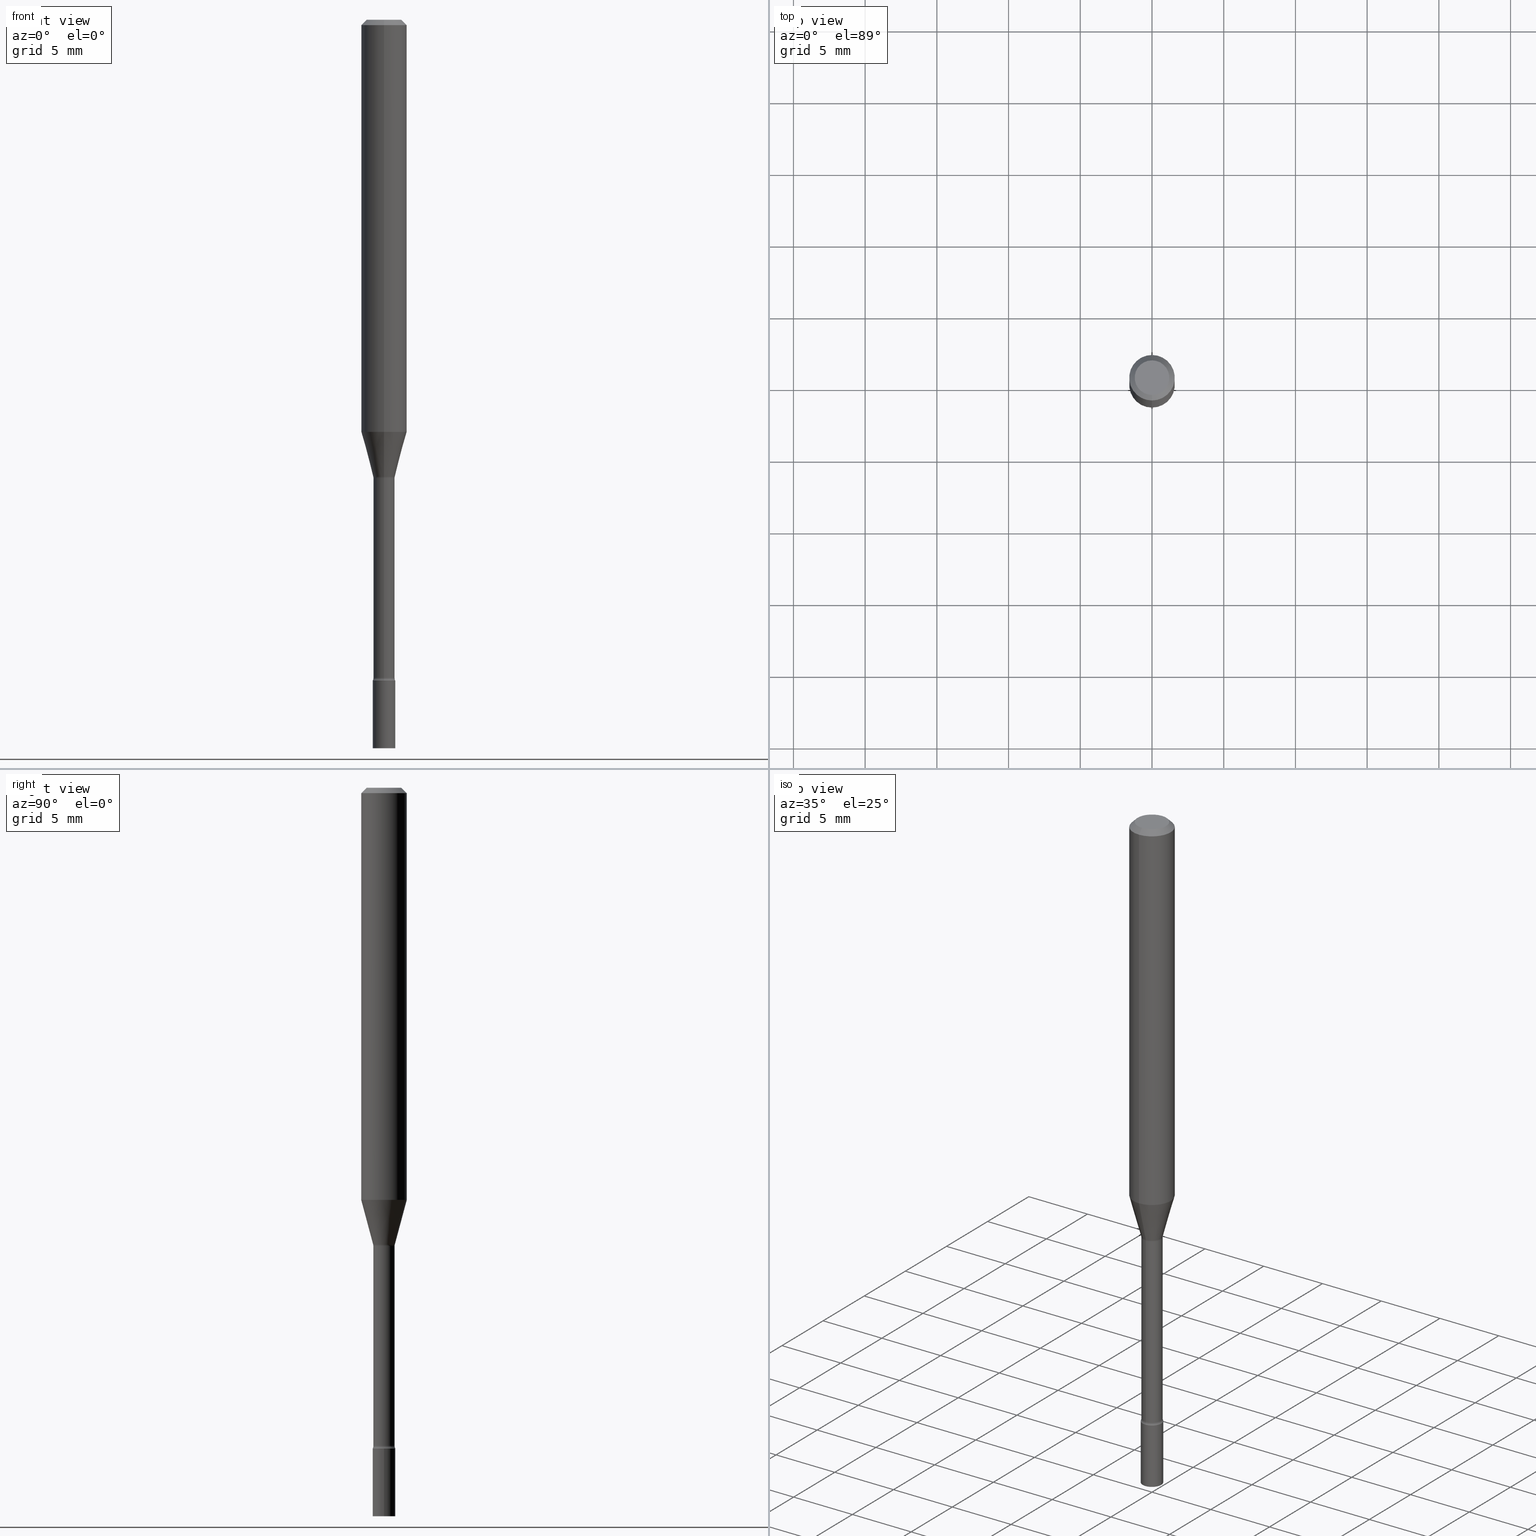
[diagram: canonical four-view strip — front | top / right | iso, engineering-drawing reading convention]
A machine part, canonical four-view strip (front | top / right | iso — engineering-drawing reading convention). The complete STEP part file that produces these views, byte-faithful:
ISO-10303-21;
HEADER;
FILE_DESCRIPTION (( 'STEP AP203' ),
    '1' );
FILE_NAME ('09378.STEP',
    '2024-03-08T23:30:36',
    ( '' ),
    ( '' ),
    'SwSTEP 2.0',
    'SolidWorks 2023',
    '' );
FILE_SCHEMA (( 'CONFIG_CONTROL_DESIGN' ));
ENDSEC;

DATA;
#1 = CARTESIAN_POINT ( 'NONE',  ( -0.03099999999999999978, -6.437986665088246838E-15, -1.813999999999999835 ) ) ;
#2 = CARTESIAN_POINT ( 'NONE',  ( 0.000000000000000000, 0.000000000000000000, 0.000000000000000000 ) ) ;
#3 = DIRECTION ( 'NONE',  ( 2.445468536737133447E-29, -3.491481724708021844E-15, -1.000000000000000000 ) ) ;
#4 = DIRECTION ( 'NONE',  ( -6.982962677686265133E-15, -1.000000000000000000, 0.000000000000000000 ) ) ;
#5 = DIRECTION ( 'NONE',  ( -2.445468536737133447E-29, 3.491481724708021844E-15, 1.000000000000000000 ) ) ;
#6 = AXIS2_PLACEMENT_3D ( 'NONE', #144, #466, #393 ) ;
#7 = AXIS2_PLACEMENT_3D ( 'NONE', #352, #3, #355 ) ;
#8 = FACE_OUTER_BOUND ( 'NONE', #251, .T. ) ;
#9 = CARTESIAN_POINT ( 'NONE',  ( 0.03099999999999999978, -7.199434520694564708E-15, -2.000000000000000000 ) ) ;
#10 = ADVANCED_FACE ( 'NONE', ( #152 ), #422, .F. ) ;
#11 = CYLINDRICAL_SURFACE ( 'NONE', #218, 0.02915000000000001618 ) ;
#12 = ORIENTED_EDGE ( 'NONE', *, *, #241, .F. ) ;
#13 = AXIS2_PLACEMENT_3D ( 'NONE', #275, #439, #82 ) ;
#14 = DIRECTION ( 'NONE',  ( 1.000000000000000000, -6.982962677686270655E-15, 0.000000000000000000 ) ) ;
#15 = VERTEX_POINT ( 'NONE', #430 ) ;
#16 = DIRECTION ( 'NONE',  ( 1.000000000000000000, -7.105427357601001070E-15, 4.926315513267563992E-29 ) ) ;
#17 = ORIENTED_EDGE ( 'NONE', *, *, #403, .T. ) ;
#18 = DIRECTION ( 'NONE',  ( -6.982962677686266711E-15, -1.000000000000000000, 0.000000000000000000 ) ) ;
#19 = CC_DESIGN_DATE_AND_TIME_ASSIGNMENT ( #115, #193, ( #196 ) ) ;
#20 = ORIENTED_EDGE ( 'NONE', *, *, #485, .T. ) ;
#21 = AXIS2_PLACEMENT_3D ( 'NONE', #396, #354, #155 ) ;
#22 = FACE_OUTER_BOUND ( 'NONE', #227, .T. ) ;
#23 = CONICAL_SURFACE ( 'NONE', #463, 0.02966111260566397720, 0.2617993877991501295 ) ;
#24 = PLANE ( 'NONE',  #243 ) ;
#25 = ORIENTED_EDGE ( 'NONE', *, *, #403, .F. ) ;
#26 = CALENDAR_DATE ( 2024, 8, 3 ) ;
#27 = DIRECTION ( 'NONE',  ( 2.438088387897960049E-29, -3.491481338843145188E-15, -1.000000000000000000 ) ) ;
#28 = ORIENTED_EDGE ( 'NONE', *, *, #46, .F. ) ;
#29 = DIRECTION ( 'NONE',  ( -2.445468536737133167E-29, 3.491481724708022239E-15, 1.000000000000000000 ) ) ;
#30 = CARTESIAN_POINT ( 'NONE',  ( 4.440892098500625669E-16, 0.06250000000000000000, -2.182176077942513406E-16 ) ) ;
#31 = PRODUCT_RELATED_PRODUCT_CATEGORY ( 'detail', '', ( #443 ) ) ;
#32 = AXIS2_PLACEMENT_3D ( 'NONE', #69, #370, #300 ) ;
#33 = VECTOR ( 'NONE', #169, 39.37007874015748143 ) ;
#34 = CARTESIAN_POINT ( 'NONE',  ( 3.066843755278733880E-29, -4.378641051083626177E-15, -1.254092501787273051 ) ) ;
#35 = ORIENTED_EDGE ( 'NONE', *, *, #85, .F. ) ;
#36 = APPLICATION_CONTEXT ( 'configuration controlled 3d designs of mechanical parts and assemblies' ) ;
#37 = EDGE_LOOP ( 'NONE', ( #55, #210 ) ) ;
#38 = CC_DESIGN_PERSON_AND_ORGANIZATION_ASSIGNMENT ( #316, #388, ( #196 ) ) ;
#39 = APPLICATION_PROTOCOL_DEFINITION ( 'international standard', 'config_control_design', 1994, #36 ) ;
#40 = CARTESIAN_POINT ( 'NONE',  ( 3.066843755278733880E-29, -4.378641051083626177E-15, -1.254092501787273051 ) ) ;
#41 = CARTESIAN_POINT ( 'NONE',  ( -2.035533620545107573E-16, -0.02915000000000635139, -1.806783525791634704 ) ) ;
#42 = AXIS2_PLACEMENT_3D ( 'NONE', #34, #469, #206 ) ;
#43 = AXIS2_PLACEMENT_3D ( 'NONE', #462, #285, #224 ) ;
#44 = ADVANCED_FACE ( 'NONE', ( #467 ), #180, .F. ) ;
#45 = DIRECTION ( 'NONE',  ( -2.445468536737133447E-29, 3.491481724708021844E-15, 1.000000000000000000 ) ) ;
#46 = EDGE_CURVE ( 'NONE', #464, #173, #346, .T. ) ;
#47 = DIRECTION ( 'NONE',  ( -6.982962677686266711E-15, -1.000000000000000000, 3.491481724708022633E-15 ) ) ;
#48 = AXIS2_PLACEMENT_3D ( 'NONE', #200, #434, #116 ) ;
#49 = VECTOR ( 'NONE', #112, 39.37007874015748143 ) ;
#50 = ORIENTED_EDGE ( 'NONE', *, *, #174, .F. ) ;
#51 = EDGE_CURVE ( 'NONE', #68, #71, #320, .T. ) ;
#52 = DIRECTION ( 'NONE',  ( -2.445468806185136597E-29, 3.491481338843145583E-15, 1.000000000000000000 ) ) ;
#53 = ORIENTED_EDGE ( 'NONE', *, *, #167, .F. ) ;
#54 = CLOSED_SHELL ( 'NONE', ( #431, #444, #286, #141 ) ) ;
#55 = ORIENTED_EDGE ( 'NONE', *, *, #485, .F. ) ;
#56 = CARTESIAN_POINT ( 'NONE',  ( 3.274220454076449378E-16, 0.02966111260565960223, -1.254092501787273051 ) ) ;
#57 = DIRECTION ( 'NONE',  ( 7.105427357601001859E-15, 1.000000000000000000, 0.000000000000000000 ) ) ;
#58 = EDGE_CURVE ( 'NONE', #291, #287, #79, .T. ) ;
#59 = EDGE_CURVE ( 'NONE', #296, #287, #126, .T. ) ;
#60 = ORIENTED_EDGE ( 'NONE', *, *, #199, .T. ) ;
#61 = DIRECTION ( 'NONE',  ( -2.445468536737133447E-29, 3.491481724708021844E-15, 1.000000000000000000 ) ) ;
#62 = PERSON_AND_ORGANIZATION_ROLE ( 'design_supplier' ) ;
#63 = VERTEX_POINT ( 'NONE', #1 ) ;
#64 = PLANE ( 'NONE',  #363 ) ;
#65 = CONICAL_SURFACE ( 'NONE', #7, 0.06250000000000000000, 0.7853981633974483900 ) ;
#66 = EDGE_CURVE ( 'NONE', #71, #181, #481, .T. ) ;
#67 = ORIENTED_EDGE ( 'NONE', *, *, #395, .F. ) ;
#68 = VERTEX_POINT ( 'NONE', #478 ) ;
#69 = CARTESIAN_POINT ( 'NONE',  ( 4.418432751852640684E-29, -6.308350963630715621E-15, -1.806783525791634704 ) ) ;
#70 = CARTESIAN_POINT ( 'NONE',  ( 4.418432751852640684E-29, -6.308350963630715621E-15, -1.806783525791634704 ) ) ;
#71 = VERTEX_POINT ( 'NONE', #239 ) ;
#72 = PERSON_AND_ORGANIZATION ( #399, #402 ) ;
#73 = EDGE_CURVE ( 'NONE', #330, #184, #337, .T. ) ;
#74 = APPLICATION_CONTEXT ( 'configuration controlled 3d designs of mechanical parts and assemblies' ) ;
#75 = DIRECTION ( 'NONE',  ( -6.982962677686265922E-15, -1.000000000000000000, 3.491481724708021844E-15 ) ) ;
#76 = CALENDAR_DATE ( 2024, 8, 3 ) ;
#77 = DIRECTION ( 'NONE',  ( -6.982962677686265922E-15, -1.000000000000000000, 0.000000000000000000 ) ) ;
#78 = SHAPE_DEFINITION_REPRESENTATION ( #86, #506 ) ;
#79 = CIRCLE ( 'NONE', #381, 0.01500000000000002720 ) ;
#80 = AXIS2_PLACEMENT_3D ( 'NONE', #498, #414, #252 ) ;
#81 = PERSON_AND_ORGANIZATION ( #399, #402 ) ;
#82 = DIRECTION ( 'NONE',  ( -6.982962677686266711E-15, -1.000000000000000000, 0.000000000000000000 ) ) ;
#83 = PERSON_AND_ORGANIZATION_ROLE ( 'design_owner' ) ;
#84 = DIRECTION ( 'NONE',  ( -2.445468806185136597E-29, 3.491481338843145583E-15, 1.000000000000000000 ) ) ;
#85 = EDGE_CURVE ( 'NONE', #15, #63, #272, .T. ) ;
#86 = PRODUCT_DEFINITION_SHAPE ( 'NONE', 'NONE',  #196 ) ;
#87 = LINE ( 'NONE', #447, #98 ) ;
#88 = DIRECTION ( 'NONE',  ( -1.807323732225328562E-15, -0.2588190451025179639, 0.9659258262890689783 ) ) ;
#89 = AXIS2_PLACEMENT_3D ( 'NONE', #187, #301, #225 ) ;
#90 = AXIS2_PLACEMENT_3D ( 'NONE', #215, #366, #18 ) ;
#91 = CC_DESIGN_PERSON_AND_ORGANIZATION_ASSIGNMENT ( #367, #62, ( #154 ) ) ;
#92 = ORIENTED_EDGE ( 'NONE', *, *, #85, .T. ) ;
#93 = DIRECTION ( 'NONE',  ( -6.982962677686265922E-15, -1.000000000000000000, 4.370956789862821150E-15 ) ) ;
#94 = DIRECTION ( 'NONE',  ( -2.445468536737133447E-29, 3.491481724708021844E-15, 1.000000000000000000 ) ) ;
#95 = CYLINDRICAL_SURFACE ( 'NONE', #80, 0.03099999999999999978 ) ;
#96 = ORIENTED_EDGE ( 'NONE', *, *, #314, .F. ) ;
#97 = CLOSED_SHELL ( 'NONE', ( #513, #117, #44, #250, #232, #412, #157, #217, #281, #451, #10, #178, #263, #132 ) ) ;
#98 = VECTOR ( 'NONE', #321, 39.37007874015747433 ) ;
#99 = EDGE_CURVE ( 'NONE', #173, #464, #189, .T. ) ;
#100 = ORIENTED_EDGE ( 'NONE', *, *, #58, .T. ) ;
#101 = CYLINDRICAL_SURFACE ( 'NONE', #170, 0.06250000000000000000 ) ;
#102 = ORIENTED_EDGE ( 'NONE', *, *, #378, .T. ) ;
#103 = CARTESIAN_POINT ( 'NONE',  ( 3.840629472727447874E-16, 0.04749999999999999362, -1.947592745229184119E-16 ) ) ;
#104 = PERSON_AND_ORGANIZATION ( #399, #402 ) ;
#105 = ORIENTED_EDGE ( 'NONE', *, *, #314, .T. ) ;
#106 = DIRECTION ( 'NONE',  ( -2.445468536737133447E-29, 3.491481724708021844E-15, 1.000000000000000000 ) ) ;
#107 = AXIS2_PLACEMENT_3D ( 'NONE', #472, #29, #338 ) ;
#108 = SECURITY_CLASSIFICATION ( '', '', #460 ) ;
#109 = APPROVAL ( #344, 'UNSPECIFIED' ) ;
#110 = ORIENTED_EDGE ( 'NONE', *, *, #59, .F. ) ;
#111 = EDGE_CURVE ( 'NONE', #298, #63, #118, .T. ) ;
#112 = DIRECTION ( 'NONE',  ( -4.851104656540964275E-15, -0.7071067811865500152, -0.7071067811865450192 ) ) ;
#113 = LOCAL_TIME ( 18, 30, 36.00000000000000000, #433 ) ;
#114 = DIMENSIONAL_EXPONENTS ( 1.000000000000000000, 0.000000000000000000, 0.000000000000000000, 0.000000000000000000, 0.000000000000000000, 0.000000000000000000, 0.000000000000000000 ) ;
#115 = DATE_AND_TIME ( #76, #119 ) ;
#116 = DIRECTION ( 'NONE',  ( -6.982962677686266711E-15, -1.000000000000000000, 3.491481724708022633E-15 ) ) ;
#117 = ADVANCED_FACE ( 'NONE', ( #234 ), #237, .T. ) ;
#118 = CIRCLE ( 'NONE', #163, 0.03099999999999999978 ) ;
#119 = LOCAL_TIME ( 18, 30, 36.00000000000000000, #121 ) ;
#120 = DIRECTION ( 'NONE',  ( 7.105427357601001859E-15, 1.000000000000000000, 0.000000000000000000 ) ) ;
#121 = COORDINATED_UNIVERSAL_TIME_OFFSET ( 5, 0, .BEHIND. ) ;
#122 = DIRECTION ( 'NONE',  ( -6.982962677686265922E-15, -1.000000000000000000, 3.491481724708021844E-15 ) ) ;
#123 = DIRECTION ( 'NONE',  ( -1.000000000000000000, 6.982962677686265922E-15, -4.883557194083112340E-29 ) ) ;
#124 = DIRECTION ( 'NONE',  ( -2.445468536737133447E-29, 3.491481724708021844E-15, 1.000000000000000000 ) ) ;
#125 = DIRECTION ( 'NONE',  ( 1.000000000000000000, -6.982962677686270655E-15, 0.000000000000000000 ) ) ;
#126 = CIRCLE ( 'NONE', #13, 0.02914999999999998842 ) ;
#127 = CARTESIAN_POINT ( 'NONE',  ( -2.035533620545238229E-16, -0.02915000000000438074, -1.257974787463810973 ) ) ;
#128 = ORIENTED_EDGE ( 'NONE', *, *, #492, .T. ) ;
#129 = CARTESIAN_POINT ( 'NONE',  ( 4.440892098500904235E-16, 0.06249999999999995143, -0.01500000000000024751 ) ) ;
#130 = DIRECTION ( 'NONE',  ( -6.982962677686265133E-15, -1.000000000000000000, 0.000000000000000000 ) ) ;
#131 = DIRECTION ( 'NONE',  ( -2.445468536737133447E-29, 3.491481724708021844E-15, 1.000000000000000000 ) ) ;
#132 = ADVANCED_FACE ( 'NONE', ( #255 ), #406, .F. ) ;
#133 = ORIENTED_EDGE ( 'NONE', *, *, #477, .T. ) ;
#134 = FACE_OUTER_BOUND ( 'NONE', #385, .T. ) ;
#135 = ORIENTED_EDGE ( 'NONE', *, *, #425, .F. ) ;
#136 = AXIS2_PLACEMENT_3D ( 'NONE', #40, #138, #130 ) ;
#137 = DIRECTION ( 'NONE',  ( 2.445468536737133167E-29, -3.491481724708022239E-15, -1.000000000000000000 ) ) ;
#138 = DIRECTION ( 'NONE',  ( -2.445468536737133447E-29, 3.491481724708021844E-15, 1.000000000000000000 ) ) ;
#139 = DIRECTION ( 'NONE',  ( -6.982962677686265922E-15, -1.000000000000000000, 3.491481724708021844E-15 ) ) ;
#140 = CARTESIAN_POINT ( 'NONE',  ( 3.316907271900976096E-16, 0.04749999999999999362, -1.803023282232747297E-16 ) ) ;
#141 = ADVANCED_FACE ( 'NONE', ( #222 ), #24, .T. ) ;
#142 = ORIENTED_EDGE ( 'NONE', *, *, #325, .T. ) ;
#143 = CARTESIAN_POINT ( 'NONE',  ( 3.066843755278733880E-29, -4.378641051083626177E-15, -1.254092501787273051 ) ) ;
#144 = CARTESIAN_POINT ( 'NONE',  ( -3.082978022198179073E-16, -0.04415000000000438712, -1.257974787463810751 ) ) ;
#145 = ORIENTED_EDGE ( 'NONE', *, *, #66, .F. ) ;
#146 = CIRCLE ( 'NONE', #389, 0.02966111260566397720 ) ;
#147 = CIRCLE ( 'NONE', #417, 0.01500000000000001853 ) ;
#148 = ORIENTED_EDGE ( 'NONE', *, *, #211, .F. ) ;
#149 = CARTESIAN_POINT ( 'NONE',  ( -2.164718430082299331E-16, -0.03100000000000634887, -1.813999999999999835 ) ) ;
#150 = LINE ( 'NONE', #295, #357 ) ;
#151 = EDGE_LOOP ( 'NONE', ( #376, #12, #365, #457 ) ) ;
#152 = FACE_OUTER_BOUND ( 'NONE', #37, .T. ) ;
#153 = COORDINATED_UNIVERSAL_TIME_OFFSET ( 5, 0, .BEHIND. ) ;
#154 = PRODUCT_DEFINITION_FORMATION_WITH_SPECIFIED_SOURCE ( 'ANY', '', #443, .NOT_KNOWN. ) ;
#155 = DIRECTION ( 'NONE',  ( -6.982962677686265922E-15, -1.000000000000000000, 0.000000000000000000 ) ) ;
#156 = APPROVAL_STATUS ( 'not_yet_approved' ) ;
#157 = ADVANCED_FACE ( 'NONE', ( #261 ), #247, .T. ) ;
#158 = DIRECTION ( 'NONE',  ( -2.445468536737133447E-29, 3.491481724708021844E-15, 1.000000000000000000 ) ) ;
#159 = APPROVAL_DATE_TIME ( #195, #269 ) ;
#160 = DIRECTION ( 'NONE',  ( 6.982962677686265922E-15, 1.000000000000000000, -3.483106191921935554E-15 ) ) ;
#161 = APPROVAL_ROLE ( '' ) ;
#162 = CARTESIAN_POINT ( 'NONE',  ( 4.364351673553919652E-16, 0.06249999999999995143, -0.01500000000000024751 ) ) ;
#163 = AXIS2_PLACEMENT_3D ( 'NONE', #165, #319, #484 ) ;
#164 = AXIS2_PLACEMENT_3D ( 'NONE', #401, #131, #93 ) ;
#165 = CARTESIAN_POINT ( 'NONE',  ( 4.436080414419837365E-29, -6.333547148661465016E-15, -1.813999999999999835 ) ) ;
#166 = CYLINDRICAL_SURFACE ( 'NONE', #290, 0.03099999999999999978 ) ;
#167 = EDGE_CURVE ( 'NONE', #507, #296, #150, .T. ) ;
#168 = DIRECTION ( 'NONE',  ( 1.000000000000000000, -6.982962677686270655E-15, 0.000000000000000000 ) ) ;
#169 = DIRECTION ( 'NONE',  ( 4.937700262164548042E-15, 0.7071067811865451302, -0.7071067811865499042 ) ) ;
#170 = AXIS2_PLACEMENT_3D ( 'NONE', #253, #61, #216 ) ;
#171 = CC_DESIGN_SECURITY_CLASSIFICATION ( #108, ( #154 ) ) ;
#172 = FACE_OUTER_BOUND ( 'NONE', #461, .T. ) ;
#173 = VERTEX_POINT ( 'NONE', #103 ) ;
#174 = EDGE_CURVE ( 'NONE', #291, #68, #146, .T. ) ;
#175 = ORIENTED_EDGE ( 'NONE', *, *, #245, .F. ) ;
#176 = DIRECTION ( 'NONE',  ( -2.445468536737133447E-29, 3.491481724708021844E-15, 1.000000000000000000 ) ) ;
#177 = FACE_OUTER_BOUND ( 'NONE', #297, .T. ) ;
#178 = ADVANCED_FACE ( 'NONE', ( #177 ), #436, .F. ) ;
#179 = ORIENTED_EDGE ( 'NONE', *, *, #426, .F. ) ;
#180 = TOROIDAL_SURFACE ( 'NONE', #317, 0.04415000000000005725, 0.01500000000000001853 ) ;
#181 = VERTEX_POINT ( 'NONE', #336 ) ;
#182 = FACE_OUTER_BOUND ( 'NONE', #459, .T. ) ;
#183 = CC_DESIGN_PERSON_AND_ORGANIZATION_ASSIGNMENT ( #81, #348, ( #154 ) ) ;
#184 = VERTEX_POINT ( 'NONE', #149 ) ;
#185 = DIRECTION ( 'NONE',  ( 0.000000000000000000, 0.000000000000000000, 1.000000000000000000 ) ) ;
#186 = DIRECTION ( 'NONE',  ( 6.982962677686265922E-15, 1.000000000000000000, -3.491481724708022239E-15 ) ) ;
#187 = CARTESIAN_POINT ( 'NONE',  ( 3.076338101710126374E-29, -4.392195495165068238E-15, -1.257974787463810973 ) ) ;
#188 = VERTEX_POINT ( 'NONE', #327 ) ;
#189 = CIRCLE ( 'NONE', #48, 0.04749999999999999362 ) ;
#190 = AXIS2_PLACEMENT_3D ( 'NONE', #488, #495, #486 ) ;
#191 = ORIENTED_EDGE ( 'NONE', *, *, #174, .T. ) ;
#192 = ORIENTED_EDGE ( 'NONE', *, *, #492, .F. ) ;
#193 = DATE_TIME_ROLE ( 'creation_date' ) ;
#194 = AXIS2_PLACEMENT_3D ( 'NONE', #303, #514, #468 ) ;
#195 = DATE_AND_TIME ( #435, #208 ) ;
#196 = PRODUCT_DEFINITION ( 'UNKNOWN', '', #154, #416 ) ;
#197 =( LENGTH_UNIT ( ) NAMED_UNIT ( * ) SI_UNIT ( $, .METRE. ) );
#198 = CARTESIAN_POINT ( 'NONE',  ( -2.071224423039705106E-16, -0.02966111260566835564, -1.254092501787273051 ) ) ;
#199 = EDGE_CURVE ( 'NONE', #181, #322, #510, .T. ) ;
#200 = CARTESIAN_POINT ( 'NONE',  ( 7.070801462615394512E-46, -1.009523276005824331E-31, -2.891389259928738292E-17 ) ) ;
#201 = AXIS2_PLACEMENT_3D ( 'NONE', #361, #392, #160 ) ;
#202 =( GEOMETRIC_REPRESENTATION_CONTEXT ( 3 ) GLOBAL_UNCERTAINTY_ASSIGNED_CONTEXT ( ( #213 ) ) GLOBAL_UNIT_ASSIGNED_CONTEXT ( ( #349, #268, #384 ) ) REPRESENTATION_CONTEXT ( 'NONE', 'WORKASPACE' ) );
#203 = CARTESIAN_POINT ( 'NONE',  ( 0.000000000000000000, 0.000000000000000000, 0.000000000000000000 ) ) ;
#204 = DIRECTION ( 'NONE',  ( -2.445468536737133447E-29, 3.491481724708022239E-15, 1.000000000000000000 ) ) ;
#205 = DIRECTION ( 'NONE',  ( -2.445468806185136597E-29, 3.491481338843145583E-15, 1.000000000000000000 ) ) ;
#206 = DIRECTION ( 'NONE',  ( -6.982962677686265133E-15, -1.000000000000000000, 0.000000000000000000 ) ) ;
#207 = AXIS2_PLACEMENT_3D ( 'NONE', #2, #5, #310 ) ;
#208 = LOCAL_TIME ( 18, 30, 36.00000000000000000, #270 ) ;
#209 = CARTESIAN_POINT ( 'NONE',  ( 0.03099999999999999978, -6.550018991669739348E-15, -1.813999999999999835 ) ) ;
#210 = ORIENTED_EDGE ( 'NONE', *, *, #73, .F. ) ;
#211 = EDGE_CURVE ( 'NONE', #71, #188, #423, .T. ) ;
#212 = PLANE ( 'NONE',  #43 ) ;
#213 = UNCERTAINTY_MEASURE_WITH_UNIT (LENGTH_MEASURE( 1.000000000000000082E-05 ), #349, 'distance_accuracy_value', 'NONE');
#214 = EDGE_LOOP ( 'NONE', ( #305, #17, #302, #262 ) ) ;
#215 = CARTESIAN_POINT ( 'NONE',  ( 4.418432265018427708E-29, -6.308351660805017310E-15, -1.806783525791634704 ) ) ;
#216 = DIRECTION ( 'NONE',  ( -6.982962677686265922E-15, -1.000000000000000000, 3.491481724708021450E-15 ) ) ;
#217 = ADVANCED_FACE ( 'NONE', ( #340 ), #101, .T. ) ;
#218 = AXIS2_PLACEMENT_3D ( 'NONE', #397, #284, #122 ) ;
#219 = CC_DESIGN_APPROVAL ( #109, ( #108 ) ) ;
#220 = APPROVAL_PERSON_ORGANIZATION ( #345, #269, #311 ) ;
#221 = COORDINATED_UNIVERSAL_TIME_OFFSET ( 5, 0, .BEHIND. ) ;
#222 = FACE_OUTER_BOUND ( 'NONE', #410, .T. ) ;
#223 = ORIENTED_EDGE ( 'NONE', *, *, #325, .F. ) ;
#224 = DIRECTION ( 'NONE',  ( 1.000000000000000000, -6.982962677686265922E-15, 4.876176775795935793E-29 ) ) ;
#225 = DIRECTION ( 'NONE',  ( -6.982962677686265922E-15, -1.000000000000000000, 3.491481724708021844E-15 ) ) ;
#226 = ORIENTED_EDGE ( 'NONE', *, *, #259, .T. ) ;
#227 = EDGE_LOOP ( 'NONE', ( #254, #60, #343, #148 ) ) ;
#228 = APPLICATION_PROTOCOL_DEFINITION ( 'international standard', 'config_control_design', 1994, #74 ) ;
#229 = AXIS2_PLACEMENT_3D ( 'NONE', #504, #106, #258 ) ;
#230 = APPROVAL_DATE_TIME ( #350, #109 ) ;
#231 = ORIENTED_EDGE ( 'NONE', *, *, #73, .T. ) ;
#232 = ADVANCED_FACE ( 'NONE', ( #22 ), #429, .T. ) ;
#233 = ORIENTED_EDGE ( 'NONE', *, *, #111, .T. ) ;
#234 = FACE_OUTER_BOUND ( 'NONE', #282, .T. ) ;
#235 = VECTOR ( 'NONE', #458, 39.37007874015748143 ) ;
#236 = CIRCLE ( 'NONE', #229, 0.06250000000000000000 ) ;
#237 = CYLINDRICAL_SURFACE ( 'NONE', #323, 0.02915000000000001618 ) ;
#238 = CARTESIAN_POINT ( 'NONE',  ( 3.668202805105707334E-31, -5.237222587062043490E-17, -0.01500000000000003067 ) ) ;
#239 = CARTESIAN_POINT ( 'NONE',  ( -4.364351673553641579E-16, -0.06250000000000398293, -1.131536105567577888 ) ) ;
#240 = APPROVAL_STATUS ( 'not_yet_approved' ) ;
#241 = EDGE_CURVE ( 'NONE', #68, #291, #307, .T. ) ;
#242 = LINE ( 'NONE', #162, #33 ) ;
#243 = AXIS2_PLACEMENT_3D ( 'NONE', #375, #27, #379 ) ;
#244 = FACE_OUTER_BOUND ( 'NONE', #408, .T. ) ;
#245 = EDGE_CURVE ( 'NONE', #68, #296, #427, .T. ) ;
#246 = ORIENTED_EDGE ( 'NONE', *, *, #425, .T. ) ;
#247 = CONICAL_SURFACE ( 'NONE', #42, 0.02966111260566397720, 0.2617993877991501295 ) ;
#248 = ORIENTED_EDGE ( 'NONE', *, *, #426, .T. ) ;
#249 = FACE_OUTER_BOUND ( 'NONE', #304, .T. ) ;
#250 = ADVANCED_FACE ( 'NONE', ( #386 ), #273, .T. ) ;
#251 = EDGE_LOOP ( 'NONE', ( #35, #226, #248, #267 ) ) ;
#252 = DIRECTION ( 'NONE',  ( 1.000000000000000000, -6.982962677686266711E-15, 4.876176775795935232E-29 ) ) ;
#253 = CARTESIAN_POINT ( 'NONE',  ( 0.000000000000000000, 0.000000000000000000, 0.000000000000000000 ) ) ;
#254 = ORIENTED_EDGE ( 'NONE', *, *, #66, .T. ) ;
#255 = FACE_OUTER_BOUND ( 'NONE', #151, .T. ) ;
#256 = ORIENTED_EDGE ( 'NONE', *, *, #51, .F. ) ;
#257 = AXIS2_PLACEMENT_3D ( 'NONE', #445, #84, #125 ) ;
#258 = DIRECTION ( 'NONE',  ( -6.982962677686265922E-15, -1.000000000000000000, 3.483106191921935554E-15 ) ) ;
#259 = EDGE_CURVE ( 'NONE', #15, #332, #500, .T. ) ;
#260 = ORIENTED_EDGE ( 'NONE', *, *, #306, .F. ) ;
#261 = FACE_OUTER_BOUND ( 'NONE', #283, .T. ) ;
#262 = ORIENTED_EDGE ( 'NONE', *, *, #409, .F. ) ;
#263 = ADVANCED_FACE ( 'NONE', ( #244 ), #11, .T. ) ;
#264 = ORIENTED_EDGE ( 'NONE', *, *, #364, .T. ) ;
#265 = VECTOR ( 'NONE', #465, 39.37007874015748143 ) ;
#266 = LOCAL_TIME ( 18, 30, 36.00000000000000000, #221 ) ;
#267 = ORIENTED_EDGE ( 'NONE', *, *, #368, .F. ) ;
#268 =( NAMED_UNIT ( * ) PLANE_ANGLE_UNIT ( ) SI_UNIT ( $, .RADIAN. ) );
#269 = APPROVAL ( #156, 'UNSPECIFIED' ) ;
#270 = COORDINATED_UNIVERSAL_TIME_OFFSET ( 5, 0, .BEHIND. ) ;
#271 = PERSON_AND_ORGANIZATION ( #399, #402 ) ;
#272 = LINE ( 'NONE', #279, #289 ) ;
#273 = CONICAL_SURFACE ( 'NONE', #201, 0.06250000000000000000, 0.7853981633974483900 ) ;
#274 = APPROVAL_PERSON_ORGANIZATION ( #351, #309, #161 ) ;
#275 = CARTESIAN_POINT ( 'NONE',  ( 3.076337762751332275E-29, -4.392195980573354156E-15, -1.257974787463810973 ) ) ;
#276 = APPROVAL_DATE_TIME ( #475, #309 ) ;
#277 = CARTESIAN_POINT ( 'NONE',  ( 2.136957277798946103E-16, 0.02914999999999373301, -1.806783525791634704 ) ) ;
#278 = DIRECTION ( 'NONE',  ( 1.000000000000000000, -6.982962677686266711E-15, 4.876176775795935232E-29 ) ) ;
#279 = CARTESIAN_POINT ( 'NONE',  ( -0.03099999999999999978, 2.202682480856310560E-16, -1.524869877979020612E-30 ) ) ;
#280 = DIRECTION ( 'NONE',  ( -2.445468536737133447E-29, 3.491481724708021844E-15, 1.000000000000000000 ) ) ;
#281 = ADVANCED_FACE ( 'NONE', ( #441 ), #65, .T. ) ;
#282 = EDGE_LOOP ( 'NONE', ( #413, #452, #110, #53 ) ) ;
#283 = EDGE_LOOP ( 'NONE', ( #334, #191, #511, #25 ) ) ;
#284 = DIRECTION ( 'NONE',  ( -2.445468536737133447E-29, 3.491481724708021844E-15, 1.000000000000000000 ) ) ;
#285 = DIRECTION ( 'NONE',  ( -2.438088387897960049E-29, 3.491481338843145188E-15, 1.000000000000000000 ) ) ;
#286 = ADVANCED_FACE ( 'NONE', ( #8 ), #166, .T. ) ;
#287 = VERTEX_POINT ( 'NONE', #496 ) ;
#288 = DIRECTION ( 'NONE',  ( -2.445468806185136877E-29, 3.491481338843145188E-15, 1.000000000000000000 ) ) ;
#289 = VECTOR ( 'NONE', #446, 39.37007874015748143 ) ;
#290 = AXIS2_PLACEMENT_3D ( 'NONE', #440, #52, #278 ) ;
#291 = VERTEX_POINT ( 'NONE', #56 ) ;
#292 = CARTESIAN_POINT ( 'NONE',  ( 0.03099999999999999978, -2.164718430082742572E-16, 1.511614800496739984E-30 ) ) ;
#293 = CC_DESIGN_PERSON_AND_ORGANIZATION_ASSIGNMENT ( #72, #83, ( #443 ) ) ;
#294 = CARTESIAN_POINT ( 'NONE',  ( -4.364351673553916201E-16, -0.06250000000000000000, 2.182176077942513406E-16 ) ) ;
#295 = CARTESIAN_POINT ( 'NONE',  ( -2.035533620545547610E-16, -0.02915000000000001618, 1.017766922752388879E-16 ) ) ;
#296 = VERTEX_POINT ( 'NONE', #127 ) ;
#297 = EDGE_LOOP ( 'NONE', ( #135, #489, #142, #20 ) ) ;
#298 = VERTEX_POINT ( 'NONE', #209 ) ;
#299 = CIRCLE ( 'NONE', #383, 0.03099999999999999978 ) ;
#300 = DIRECTION ( 'NONE',  ( -6.982962677686265922E-15, -1.000000000000000000, 3.491481724708021844E-15 ) ) ;
#301 = DIRECTION ( 'NONE',  ( -2.445468536737133447E-29, 3.491481724708021844E-15, 1.000000000000000000 ) ) ;
#302 = ORIENTED_EDGE ( 'NONE', *, *, #211, .T. ) ;
#303 = CARTESIAN_POINT ( 'NONE',  ( 3.076337762751332275E-29, -4.392195980573354156E-15, -1.257974787463810973 ) ) ;
#304 = EDGE_LOOP ( 'NONE', ( #105, #92, #341, #179 ) ) ;
#305 = ORIENTED_EDGE ( 'NONE', *, *, #199, .F. ) ;
#306 = EDGE_CURVE ( 'NONE', #464, #188, #453, .T. ) ;
#307 = CIRCLE ( 'NONE', #136, 0.02966111260566397720 ) ;
#308 = CIRCLE ( 'NONE', #90, 0.02915000000000004046 ) ;
#309 = APPROVAL ( #240, 'UNSPECIFIED' ) ;
#310 = DIRECTION ( 'NONE',  ( -6.982962677686265922E-15, -1.000000000000000000, 3.491481724708021450E-15 ) ) ;
#311 = APPROVAL_ROLE ( '' ) ;
#312 = DIRECTION ( 'NONE',  ( -6.982962677686265922E-15, -1.000000000000000000, 3.491481724708021844E-15 ) ) ;
#313 = MECHANICAL_CONTEXT ( 'NONE', #74, 'mechanical' ) ;
#314 = EDGE_CURVE ( 'NONE', #332, #15, #299, .T. ) ;
#315 = CARTESIAN_POINT ( 'NONE',  ( 3.137046178381149114E-16, 0.04414999999999560942, -1.257974787463811195 ) ) ;
#316 = PERSON_AND_ORGANIZATION ( #399, #402 ) ;
#317 = AXIS2_PLACEMENT_3D ( 'NONE', #70, #382, #75 ) ;
#318 = AXIS2_PLACEMENT_3D ( 'NONE', #387, #158, #312 ) ;
#319 = DIRECTION ( 'NONE',  ( -2.445468806185136597E-29, 3.491481338843145583E-15, 1.000000000000000000 ) ) ;
#320 = LINE ( 'NONE', #198, #471 ) ;
#321 = DIRECTION ( 'NONE',  ( 1.839019923739599526E-15, 0.2588190451025248473, 0.9659258262890673130 ) ) ;
#322 = VERTEX_POINT ( 'NONE', #129 ) ;
#323 = AXIS2_PLACEMENT_3D ( 'NONE', #203, #493, #139 ) ;
#324 = CIRCLE ( 'NONE', #164, 0.06250000000000000000 ) ;
#325 = EDGE_CURVE ( 'NONE', #507, #184, #358, .T. ) ;
#326 = MANIFOLD_SOLID_BREP ( 'Body-Move/Copy2[2]', #97 ) ;
#327 = CARTESIAN_POINT ( 'NONE',  ( -4.364351673553912750E-16, -0.06250000000000005551, -0.01499999999999981209 ) ) ;
#328 = AXIS2_PLACEMENT_3D ( 'NONE', #487, #124, #517 ) ;
#329 = TOROIDAL_SURFACE ( 'NONE', #318, 0.04415000000000000174, 0.01500000000000002720 ) ;
#330 = VERTEX_POINT ( 'NONE', #356 ) ;
#331 = DIRECTION ( 'NONE',  ( -6.982962677686265133E-15, -1.000000000000000000, 0.000000000000000000 ) ) ;
#332 = VERTEX_POINT ( 'NONE', #9 ) ;
#333 = DATE_AND_TIME ( #26, #266 ) ;
#334 = ORIENTED_EDGE ( 'NONE', *, *, #372, .F. ) ;
#335 = CARTESIAN_POINT ( 'NONE',  ( 4.436079925641159659E-29, -6.333547848620351038E-15, -1.813999999999999835 ) ) ;
#336 = CARTESIAN_POINT ( 'NONE',  ( 4.440892098500899305E-16, 0.06249999999999602401, -1.131536105567578554 ) ) ;
#337 = CIRCLE ( 'NONE', #21, 0.03099999999999999978 ) ;
#338 = DIRECTION ( 'NONE',  ( -6.982962677686265922E-15, -1.000000000000000000, 3.491481724708022239E-15 ) ) ;
#339 = AXIS2_PLACEMENT_3D ( 'NONE', #335, #176, #77 ) ;
#340 = FACE_OUTER_BOUND ( 'NONE', #214, .T. ) ;
#341 = ORIENTED_EDGE ( 'NONE', *, *, #111, .F. ) ;
#342 = MANIFOLD_SOLID_BREP ( 'Body-Move/Copy2[1]', #54 ) ;
#343 = ORIENTED_EDGE ( 'NONE', *, *, #477, .F. ) ;
#344 = APPROVAL_STATUS ( 'not_yet_approved' ) ;
#345 = PERSON_AND_ORGANIZATION ( #399, #402 ) ;
#346 = CIRCLE ( 'NONE', #490, 0.04749999999999999362 ) ;
#347 = CIRCLE ( 'NONE', #257, 0.03099999999999999978 ) ;
#348 = PERSON_AND_ORGANIZATION_ROLE ( 'creator' ) ;
#349 =( CONVERSION_BASED_UNIT ( 'INCH', #391 ) LENGTH_UNIT ( ) NAMED_UNIT ( #114 ) );
#350 = DATE_AND_TIME ( #479, #113 ) ;
#351 = PERSON_AND_ORGANIZATION ( #399, #402 ) ;
#352 = CARTESIAN_POINT ( 'NONE',  ( 3.668202805105707334E-31, -5.237222587062043490E-17, -0.01500000000000003067 ) ) ;
#353 = CARTESIAN_POINT ( 'NONE',  ( 4.890937612370273194E-29, -6.982962677686291165E-15, -2.000000000000000000 ) ) ;
#354 = DIRECTION ( 'NONE',  ( -2.445468536737133447E-29, 3.491481724708021844E-15, 1.000000000000000000 ) ) ;
#355 = DIRECTION ( 'NONE',  ( 6.982962677686265922E-15, 1.000000000000000000, -3.483106191921935554E-15 ) ) ;
#356 = CARTESIAN_POINT ( 'NONE',  ( 2.202682480856754541E-16, 0.03099999999999368192, -1.813999999999999835 ) ) ;
#357 = VECTOR ( 'NONE', #421, 39.37007874015748143 ) ;
#358 = CIRCLE ( 'NONE', #473, 0.01500000000000001853 ) ;
#359 = DIRECTION ( 'NONE',  ( -2.445468806185136597E-29, 3.491481338843145583E-15, 1.000000000000000000 ) ) ;
#360 = DIRECTION ( 'NONE',  ( -6.982962677686265922E-15, -1.000000000000000000, 3.483106191921935554E-15 ) ) ;
#361 = CARTESIAN_POINT ( 'NONE',  ( 3.668202805105707334E-31, -5.237222587062043490E-17, -0.01500000000000003067 ) ) ;
#362 = ORIENTED_EDGE ( 'NONE', *, *, #372, .T. ) ;
#363 = AXIS2_PLACEMENT_3D ( 'NONE', #140, #137, #186 ) ;
#364 = EDGE_CURVE ( 'NONE', #419, #507, #407, .T. ) ;
#365 = ORIENTED_EDGE ( 'NONE', *, *, #245, .T. ) ;
#366 = DIRECTION ( 'NONE',  ( -2.445468536737133447E-29, 3.491481724708021844E-15, 1.000000000000000000 ) ) ;
#367 = PERSON_AND_ORGANIZATION ( #399, #402 ) ;
#368 = EDGE_CURVE ( 'NONE', #63, #298, #347, .T. ) ;
#369 = ORIENTED_EDGE ( 'NONE', *, *, #409, .T. ) ;
#370 = DIRECTION ( 'NONE',  ( -2.445468536737133447E-29, 3.491481724708021844E-15, 1.000000000000000000 ) ) ;
#371 = AXIS2_PLACEMENT_3D ( 'NONE', #483, #359, #168 ) ;
#372 = EDGE_CURVE ( 'NONE', #291, #181, #87, .T. ) ;
#373 = EDGE_LOOP ( 'NONE', ( #50, #100, #128, #175 ) ) ;
#374 = LINE ( 'NONE', #292, #482 ) ;
#375 = CARTESIAN_POINT ( 'NONE',  ( 2.164718430083231419E-16, 0.03099999999999301578, -2.000000000000000000 ) ) ;
#376 = ORIENTED_EDGE ( 'NONE', *, *, #58, .F. ) ;
#377 = CARTESIAN_POINT ( 'NONE',  ( 3.137046178381287658E-16, 0.04414999999999374980, -1.806783525791634926 ) ) ;
#378 = EDGE_CURVE ( 'NONE', #173, #322, #242, .T. ) ;
#379 = DIRECTION ( 'NONE',  ( -1.000000000000000000, 6.982962677686265922E-15, -4.876176775795935793E-29 ) ) ;
#380 = EDGE_LOOP ( 'NONE', ( #28, #503, #133, #497 ) ) ;
#381 = AXIS2_PLACEMENT_3D ( 'NONE', #315, #480, #120 ) ;
#382 = DIRECTION ( 'NONE',  ( -2.445468536737133447E-29, 3.491481724708021844E-15, 1.000000000000000000 ) ) ;
#383 = AXIS2_PLACEMENT_3D ( 'NONE', #353, #205, #14 ) ;
#384 =( NAMED_UNIT ( * ) SI_UNIT ( $, .STERADIAN. ) SOLID_ANGLE_UNIT ( ) );
#385 = EDGE_LOOP ( 'NONE', ( #233, #404 ) ) ;
#386 = FACE_OUTER_BOUND ( 'NONE', #380, .T. ) ;
#387 = CARTESIAN_POINT ( 'NONE',  ( 3.076338101710126374E-29, -4.392195495165068238E-15, -1.257974787463810973 ) ) ;
#388 = PERSON_AND_ORGANIZATION_ROLE ( 'creator' ) ;
#389 = AXIS2_PLACEMENT_3D ( 'NONE', #143, #94, #331 ) ;
#390 = CIRCLE ( 'NONE', #516, 0.06250000000000000000 ) ;
#391 = LENGTH_MEASURE_WITH_UNIT ( LENGTH_MEASURE( 0.02539999999999999897 ), #197 );
#392 = DIRECTION ( 'NONE',  ( 2.445468536737133447E-29, -3.491481724708021844E-15, -1.000000000000000000 ) ) ;
#393 = DIRECTION ( 'NONE',  ( -6.982962677686267499E-15, -1.000000000000000000, 0.000000000000000000 ) ) ;
#394 = CARTESIAN_POINT ( 'NONE',  ( 2.071232074740692945E-16, 0.02915000000000001618, -1.017766922752388879E-16 ) ) ;
#395 = EDGE_CURVE ( 'NONE', #419, #287, #450, .T. ) ;
#396 = CARTESIAN_POINT ( 'NONE',  ( 4.436079925641159659E-29, -6.333547848620351038E-15, -1.813999999999999835 ) ) ;
#397 = CARTESIAN_POINT ( 'NONE',  ( 0.000000000000000000, 0.000000000000000000, 0.000000000000000000 ) ) ;
#398 = DIRECTION ( 'NONE',  ( -6.982962677686267499E-15, -1.000000000000000000, 0.000000000000000000 ) ) ;
#399 = PERSON ( 'UNSPECIFIED', 'UNSPECIFIED', 'UNSPECIFIED', ('UNSPECIFIED'), ('UNSPECIFIED'), ('UNSPECIFIED') ) ;
#400 = DIRECTION ( 'NONE',  ( -2.445468536737133447E-29, 3.491481724708021844E-15, 1.000000000000000000 ) ) ;
#401 = CARTESIAN_POINT ( 'NONE',  ( 2.767135944347580166E-29, -3.950737633436486769E-15, -1.131536105567578110 ) ) ;
#402 = ORGANIZATION ( 'UNSPECIFIED', 'UNSPECIFIED', '' ) ;
#403 = EDGE_CURVE ( 'NONE', #181, #71, #324, .T. ) ;
#404 = ORIENTED_EDGE ( 'NONE', *, *, #368, .T. ) ;
#405 = ORIENTED_EDGE ( 'NONE', *, *, #167, .T. ) ;
#406 = TOROIDAL_SURFACE ( 'NONE', #89, 0.04415000000000000174, 0.01500000000000002720 ) ;
#407 = CIRCLE ( 'NONE', #190, 0.02915000000000004046 ) ;
#408 = EDGE_LOOP ( 'NONE', ( #67, #264, #405, #192 ) ) ;
#409 = EDGE_CURVE ( 'NONE', #322, #188, #390, .T. ) ;
#410 = EDGE_LOOP ( 'NONE', ( #96, #512 ) ) ;
#411 = CARTESIAN_POINT ( 'NONE',  ( -3.773273898774340269E-16, -0.04749999999999999362, 1.369314893243436584E-16 ) ) ;
#412 = ADVANCED_FACE ( 'NONE', ( #172 ), #23, .T. ) ;
#413 = ORIENTED_EDGE ( 'NONE', *, *, #474, .T. ) ;
#414 = DIRECTION ( 'NONE',  ( -2.445468806185136597E-29, 3.491481338843145583E-15, 1.000000000000000000 ) ) ;
#415 = PERSON_AND_ORGANIZATION_ROLE ( 'classification_officer' ) ;
#416 = DESIGN_CONTEXT ( 'detailed design', #36, 'design' ) ;
#417 = AXIS2_PLACEMENT_3D ( 'NONE', #377, #16, #57 ) ;
#418 = CC_DESIGN_DATE_AND_TIME_ASSIGNMENT ( #333, #505, ( #108 ) ) ;
#419 = VERTEX_POINT ( 'NONE', #277 ) ;
#420 = CARTESIAN_POINT ( 'NONE',  ( 0.000000000000000000, 0.000000000000000000, 0.000000000000000000 ) ) ;
#421 = DIRECTION ( 'NONE',  ( -2.445468536737133447E-29, 3.491481724708022239E-15, 1.000000000000000000 ) ) ;
#422 = PLANE ( 'NONE',  #107 ) ;
#423 = LINE ( 'NONE', #294, #235 ) ;
#424 = CARTESIAN_POINT ( 'NONE',  ( 7.070801462615394512E-46, -1.009523276005824331E-31, -2.891389259928738292E-17 ) ) ;
#425 = EDGE_CURVE ( 'NONE', #419, #330, #147, .T. ) ;
#426 = EDGE_CURVE ( 'NONE', #332, #298, #374, .T. ) ;
#427 = CIRCLE ( 'NONE', #6, 0.01500000000000002720 ) ;
#428 = VECTOR ( 'NONE', #204, 39.37007874015748143 ) ;
#429 = CYLINDRICAL_SURFACE ( 'NONE', #207, 0.06250000000000000000 ) ;
#430 = CARTESIAN_POINT ( 'NONE',  ( -0.03099999999999999978, -6.437986665088246838E-15, -2.000000000000000000 ) ) ;
#431 = ADVANCED_FACE ( 'NONE', ( #249 ), #95, .T. ) ;
#432 = DIRECTION ( 'NONE',  ( 1.000000000000000000, 0.000000000000000000, 0.000000000000000000 ) ) ;
#433 = COORDINATED_UNIVERSAL_TIME_OFFSET ( 5, 0, .BEHIND. ) ;
#434 = DIRECTION ( 'NONE',  ( -2.445468536737133447E-29, 3.491481724708021844E-15, 1.000000000000000000 ) ) ;
#435 = CALENDAR_DATE ( 2024, 8, 3 ) ;
#436 = TOROIDAL_SURFACE ( 'NONE', #32, 0.04415000000000005725, 0.01500000000000001853 ) ;
#437 = LOCAL_TIME ( 18, 30, 36.00000000000000000, #153 ) ;
#438 = CARTESIAN_POINT ( 'NONE',  ( 3.066843755278733880E-29, -4.378641051083626177E-15, -1.254092501787273051 ) ) ;
#439 = DIRECTION ( 'NONE',  ( -2.445468536737133447E-29, 3.491481724708021844E-15, 1.000000000000000000 ) ) ;
#440 = CARTESIAN_POINT ( 'NONE',  ( 0.000000000000000000, 0.000000000000000000, 0.000000000000000000 ) ) ;
#441 = FACE_OUTER_BOUND ( 'NONE', #502, .T. ) ;
#442 = CARTESIAN_POINT ( 'NONE',  ( -3.082978022198048911E-16, -0.04415000000000637165, -1.806783525791634482 ) ) ;
#443 = PRODUCT ( '09378', '09378', '', ( #313 ) ) ;
#444 = ADVANCED_FACE ( 'NONE', ( #134 ), #212, .T. ) ;
#445 = CARTESIAN_POINT ( 'NONE',  ( 4.436080414419837365E-29, -6.333547148661465016E-15, -1.813999999999999835 ) ) ;
#446 = DIRECTION ( 'NONE',  ( -2.445468806185136877E-29, 3.491481338843145188E-15, 1.000000000000000000 ) ) ;
#447 = CARTESIAN_POINT ( 'NONE',  ( 2.107548809651993782E-16, 0.02966111260565959876, -1.254092501787273051 ) ) ;
#448 = APPROVAL_PERSON_ORGANIZATION ( #271, #109, #515 ) ;
#449 = ORIENTED_EDGE ( 'NONE', *, *, #99, .F. ) ;
#450 = LINE ( 'NONE', #394, #428 ) ;
#451 = ADVANCED_FACE ( 'NONE', ( #182 ), #64, .F. ) ;
#452 = ORIENTED_EDGE ( 'NONE', *, *, #395, .T. ) ;
#453 = LINE ( 'NONE', #455, #49 ) ;
#454 = ORIENTED_EDGE ( 'NONE', *, *, #241, .T. ) ;
#455 = CARTESIAN_POINT ( 'NONE',  ( -4.287811248607203282E-16, -0.06250000000000005551, -0.01499999999999981209 ) ) ;
#456 = CIRCLE ( 'NONE', #194, 0.02914999999999998842 ) ;
#457 = ORIENTED_EDGE ( 'NONE', *, *, #59, .T. ) ;
#458 = DIRECTION ( 'NONE',  ( -2.445468536737133447E-29, 3.491481724708022239E-15, 1.000000000000000000 ) ) ;
#459 = EDGE_LOOP ( 'NONE', ( #509, #470 ) ) ;
#460 = SECURITY_CLASSIFICATION_LEVEL ( 'unclassified' ) ;
#461 = EDGE_LOOP ( 'NONE', ( #454, #362, #145, #256 ) ) ;
#462 = CARTESIAN_POINT ( 'NONE',  ( 4.436080414419837365E-29, -6.333547148661465016E-15, -1.813999999999999835 ) ) ;
#463 = AXIS2_PLACEMENT_3D ( 'NONE', #438, #45, #4 ) ;
#464 = VERTEX_POINT ( 'NONE', #411 ) ;
#465 = DIRECTION ( 'NONE',  ( -2.445468536737133447E-29, 3.491481724708022239E-15, 1.000000000000000000 ) ) ;
#466 = DIRECTION ( 'NONE',  ( -1.000000000000000000, 6.982962677686265922E-15, -4.883557194083112340E-29 ) ) ;
#467 = FACE_OUTER_BOUND ( 'NONE', #499, .T. ) ;
#468 = DIRECTION ( 'NONE',  ( -6.982962677686266711E-15, -1.000000000000000000, 0.000000000000000000 ) ) ;
#469 = DIRECTION ( 'NONE',  ( -2.445468536737133447E-29, 3.491481724708021844E-15, 1.000000000000000000 ) ) ;
#470 = ORIENTED_EDGE ( 'NONE', *, *, #46, .T. ) ;
#471 = VECTOR ( 'NONE', #88, 39.37007874015749564 ) ;
#472 = CARTESIAN_POINT ( 'NONE',  ( 2.164718430083186060E-16, 0.03099999999999366457, -1.813999999999999835 ) ) ;
#473 = AXIS2_PLACEMENT_3D ( 'NONE', #442, #123, #398 ) ;
#474 = EDGE_CURVE ( 'NONE', #507, #419, #308, .T. ) ;
#475 = DATE_AND_TIME ( #519, #437 ) ;
#476 = FACE_OUTER_BOUND ( 'NONE', #373, .T. ) ;
#477 = EDGE_CURVE ( 'NONE', #188, #322, #236, .T. ) ;
#478 = CARTESIAN_POINT ( 'NONE',  ( -2.071224423039705106E-16, -0.02966111260566835564, -1.254092501787273051 ) ) ;
#479 = CALENDAR_DATE ( 2024, 8, 3 ) ;
#480 = DIRECTION ( 'NONE',  ( 1.000000000000000000, -7.105427357601001070E-15, 4.926315513267563992E-29 ) ) ;
#481 = CIRCLE ( 'NONE', #328, 0.06250000000000000000 ) ;
#482 = VECTOR ( 'NONE', #288, 39.37007874015748143 ) ;
#483 = CARTESIAN_POINT ( 'NONE',  ( 4.890937612370273194E-29, -6.982962677686291165E-15, -2.000000000000000000 ) ) ;
#484 = DIRECTION ( 'NONE',  ( 1.000000000000000000, -6.982962677686270655E-15, 0.000000000000000000 ) ) ;
#485 = EDGE_CURVE ( 'NONE', #184, #330, #508, .T. ) ;
#486 = DIRECTION ( 'NONE',  ( -6.982962677686266711E-15, -1.000000000000000000, 0.000000000000000000 ) ) ;
#487 = CARTESIAN_POINT ( 'NONE',  ( 2.767135944347580166E-29, -3.950737633436486769E-15, -1.131536105567578110 ) ) ;
#488 = CARTESIAN_POINT ( 'NONE',  ( 4.418432265018427708E-29, -6.308351660805017310E-15, -1.806783525791634704 ) ) ;
#489 = ORIENTED_EDGE ( 'NONE', *, *, #474, .F. ) ;
#490 = AXIS2_PLACEMENT_3D ( 'NONE', #424, #400, #47 ) ;
#491 = CC_DESIGN_APPROVAL ( #309, ( #196 ) ) ;
#492 = EDGE_CURVE ( 'NONE', #287, #296, #456, .T. ) ;
#493 = DIRECTION ( 'NONE',  ( -2.445468536737133447E-29, 3.491481724708021844E-15, 1.000000000000000000 ) ) ;
#494 = ORIENTED_EDGE ( 'NONE', *, *, #364, .F. ) ;
#495 = DIRECTION ( 'NONE',  ( -2.445468536737133447E-29, 3.491481724708021844E-15, 1.000000000000000000 ) ) ;
#496 = CARTESIAN_POINT ( 'NONE',  ( 2.071232074741134460E-16, 0.02914999999999559610, -1.257974787463810973 ) ) ;
#497 = ORIENTED_EDGE ( 'NONE', *, *, #378, .F. ) ;
#498 = CARTESIAN_POINT ( 'NONE',  ( 0.000000000000000000, 0.000000000000000000, 0.000000000000000000 ) ) ;
#499 = EDGE_LOOP ( 'NONE', ( #494, #246, #231, #223 ) ) ;
#500 = CIRCLE ( 'NONE', #371, 0.03099999999999999978 ) ;
#501 = CC_DESIGN_APPROVAL ( #269, ( #154 ) ) ;
#502 = EDGE_LOOP ( 'NONE', ( #260, #449, #102, #369 ) ) ;
#503 = ORIENTED_EDGE ( 'NONE', *, *, #306, .T. ) ;
#504 = CARTESIAN_POINT ( 'NONE',  ( 3.668202805105707334E-31, -5.237222587062043490E-17, -0.01500000000000003067 ) ) ;
#505 = DATE_TIME_ROLE ( 'classification_date' ) ;
#506 = ADVANCED_BREP_SHAPE_REPRESENTATION ( '09378', ( #342, #326, #518 ), #202 ) ;
#507 = VERTEX_POINT ( 'NONE', #41 ) ;
#508 = CIRCLE ( 'NONE', #339, 0.03099999999999999978 ) ;
#509 = ORIENTED_EDGE ( 'NONE', *, *, #99, .T. ) ;
#510 = LINE ( 'NONE', #30, #265 ) ;
#511 = ORIENTED_EDGE ( 'NONE', *, *, #51, .T. ) ;
#512 = ORIENTED_EDGE ( 'NONE', *, *, #259, .F. ) ;
#513 = ADVANCED_FACE ( 'NONE', ( #476 ), #329, .F. ) ;
#514 = DIRECTION ( 'NONE',  ( -2.445468536737133447E-29, 3.491481724708021844E-15, 1.000000000000000000 ) ) ;
#515 = APPROVAL_ROLE ( '' ) ;
#516 = AXIS2_PLACEMENT_3D ( 'NONE', #238, #280, #360 ) ;
#517 = DIRECTION ( 'NONE',  ( -6.982962677686265922E-15, -1.000000000000000000, 4.370956789862821150E-15 ) ) ;
#518 = AXIS2_PLACEMENT_3D ( 'NONE', #420, #185, #432 ) ;
#519 = CALENDAR_DATE ( 2024, 8, 3 ) ;
#520 = CC_DESIGN_PERSON_AND_ORGANIZATION_ASSIGNMENT ( #104, #415, ( #108 ) ) ;
ENDSEC;
END-ISO-10303-21;
